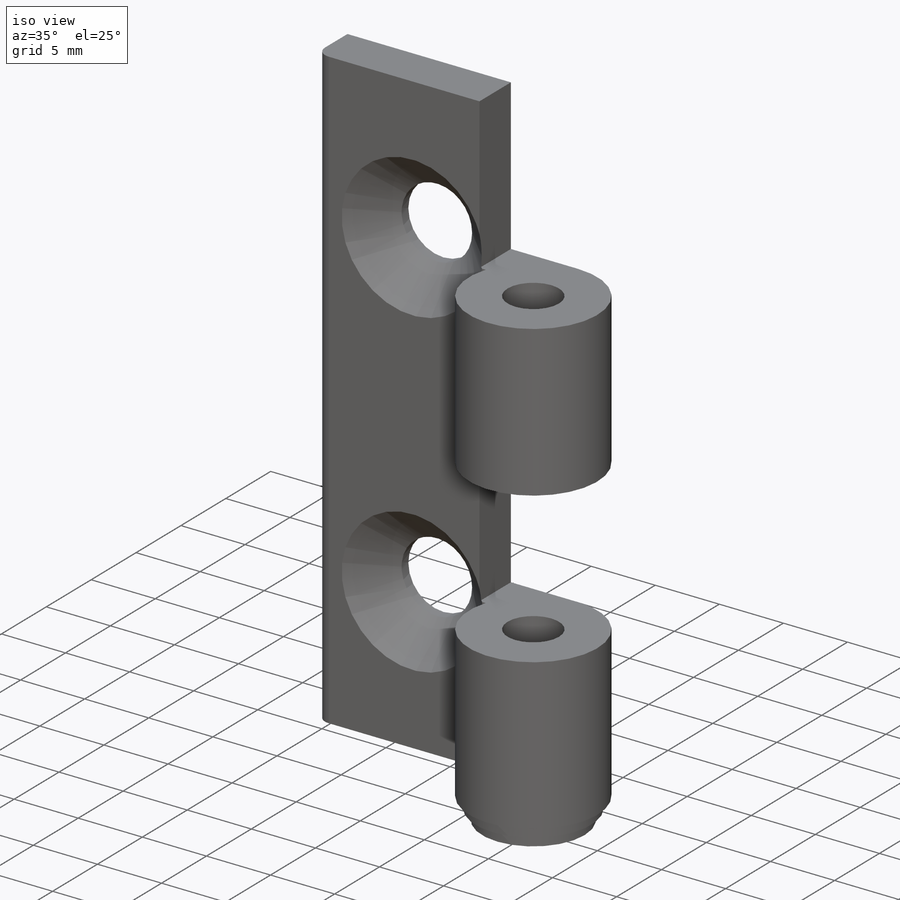
[diagram: iso view]
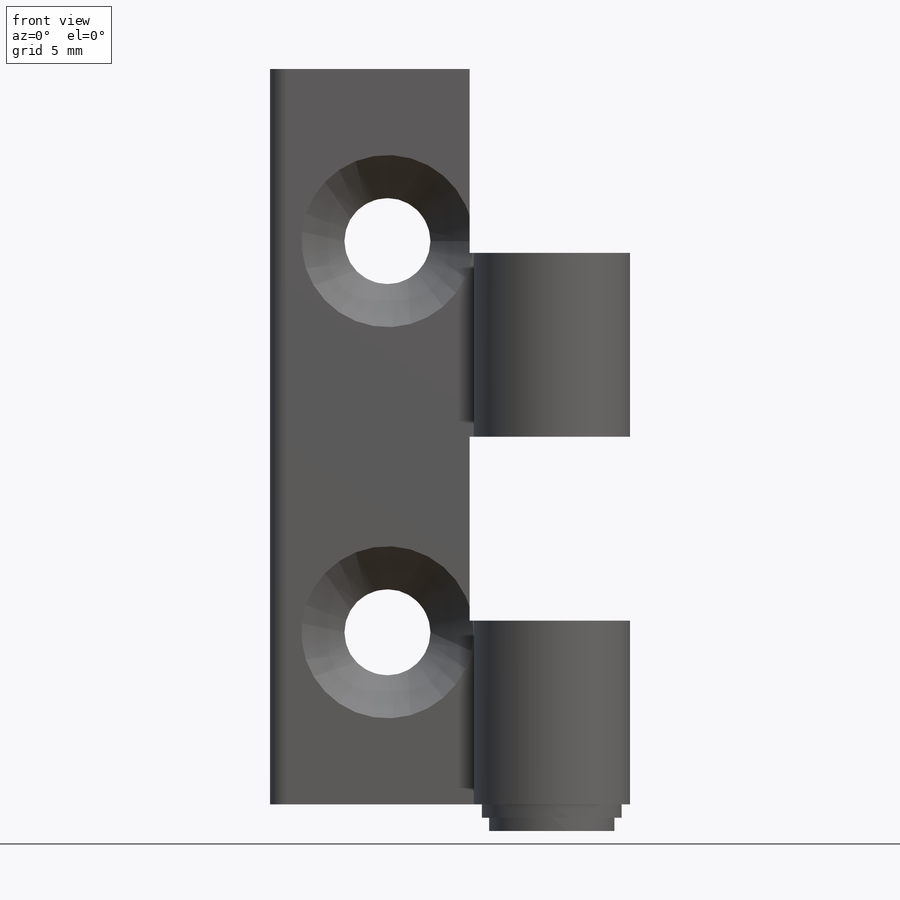
[diagram: front view]
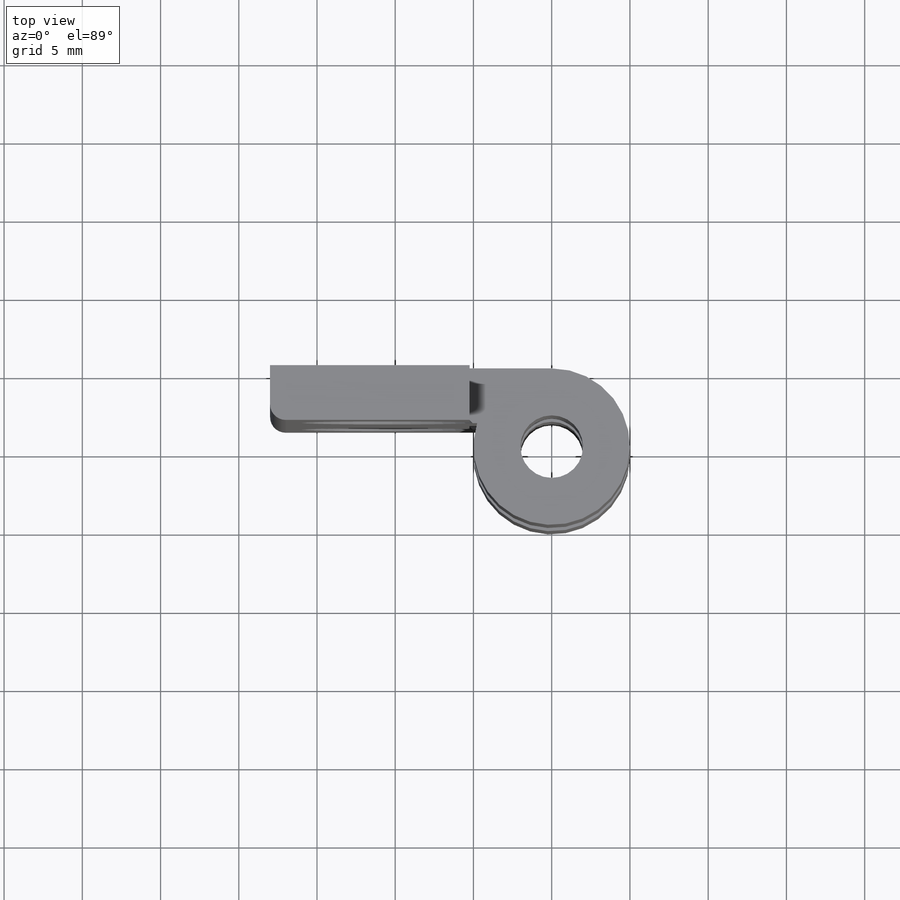
[diagram: top view]
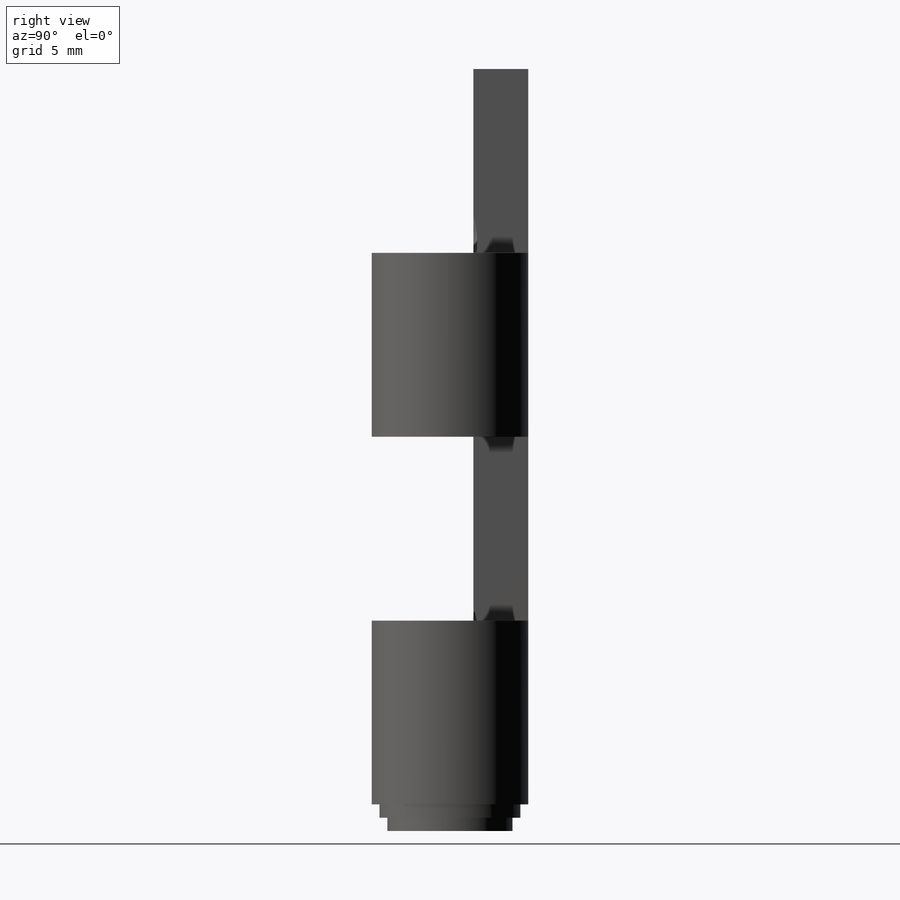
[diagram: right view]
SOLIDWORKS PART (.sldprt)
format: sldprt  version: not decoded by parser v0  size: 244,736 bytes
history: native  units: mm
features: plane x8, sketch x8, cut_revolve x3, revolve x2, cut_extrude x2, material x1, extrude x1 (+13 scaffold rows collapsed)
feature tree (38):
  scaffold x13  (default folders/planes/origin — collapsed)
  material  "6063-T5"
  plane  "Plane1"
  sketch  "Sketch1"
  revolve  "Revolve1"  Angle=360deg
  plane  "Plane2"
  sketch  "Sketch2"
  extrude  "Boss-Extrude1"  Depth=3.5mm
  plane  "Plane3"
  sketch  "Sketch3"
  cut_extrude  "Cut-Extrude1"  Depth=47mm
  plane  "Plane4"
  sketch  "Sketch4"
  revolve  "Revolve2"  Angle=360deg
  plane  "Plane5"
  sketch  "Sketch5"
  cut_revolve  "Cut-Revolve1"  Angle=360deg
  plane  "Plane6"
  sketch  "Sketch6"
  cut_revolve  "Cut-Revolve2"  Angle=360deg
  plane  "Plane7"
  sketch  "Sketch7"
  cut_revolve  "Cut-Revolve3"  Angle=360deg
  plane  "Plane8"
  sketch  "Sketch8"
  cut_extrude  "Cut-Extrude2"  Depth=23.5mm
decode coverage: 8 of 16 modeling features carry decoded parameters
note: suppression state not decoded; provenance and decode notes live in map.json
